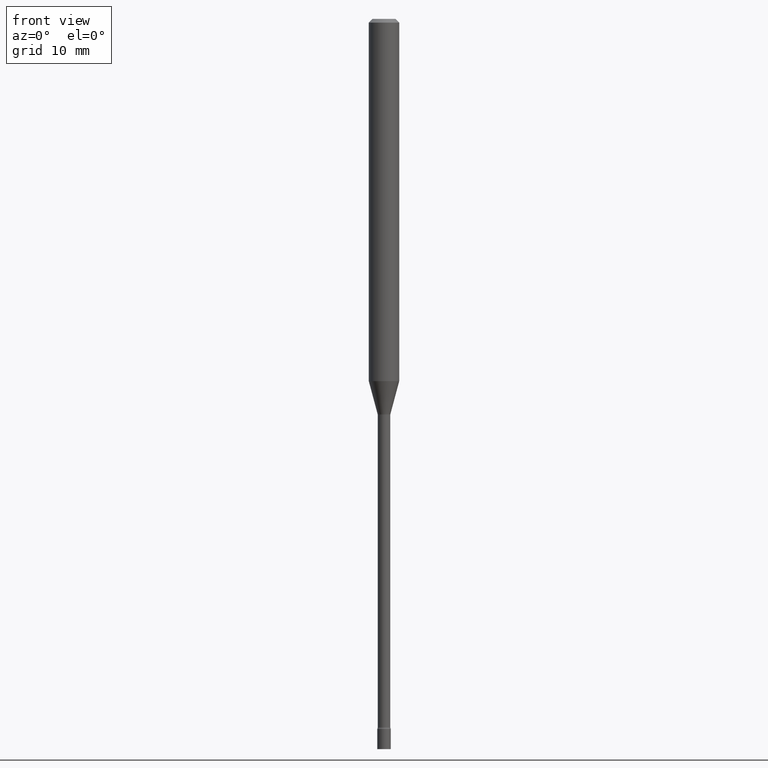
[diagram: clean part render]
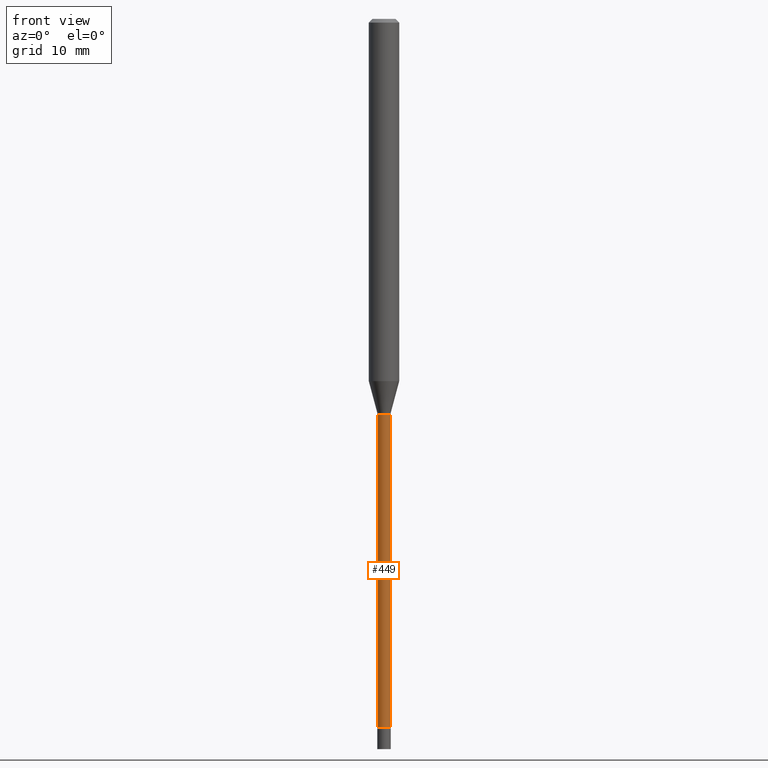
[diagram: same view with one face highlighted and labeled with its STEP entity id]
A machine part, front view. The second image highlights one B-rep face of the part: STEP entity #449.
In plain terms, the highlighted cylindrical surface (edge-blend (fillet) strip) has radius 0.6566 mm, axis along (-0, 0, 1).
Its self-contained STEP definition (entity closure, byte-faithful):
#49 = FACE_OUTER_BOUND ( 'NONE', #282, .T. ) ;
#65 = VERTEX_POINT ( 'NONE', #433 ) ;
#77 = DIRECTION ( 'NONE',  ( 1.000000000000000000, -6.982962677686291954E-15, 0.000000000000000000 ) ) ;
#82 = VERTEX_POINT ( 'NONE', #154 ) ;
#85 = CIRCLE ( 'NONE', #173, 0.02585000000000014370 ) ;
#137 = CARTESIAN_POINT ( 'NONE',  ( 0.02585000000000007084, -1.805095852181904948E-16, 1.260491696543252796E-30 ) ) ;
#154 = CARTESIAN_POINT ( 'NONE',  ( -0.02585000000000014370, -9.983173958169585675E-15, -2.910160592130893065 ) ) ;
#173 = AXIS2_PLACEMENT_3D ( 'NONE', #318, #441, #77 ) ;
#176 = LINE ( 'NONE', #254, #251 ) ;
#190 = CARTESIAN_POINT ( 'NONE',  ( 0.02585000000000014370, -1.034128098567992287E-14, -2.910160592130893065 ) ) ;
#195 = VERTEX_POINT ( 'NONE', #190 ) ;
#204 = CARTESIAN_POINT ( 'NONE',  ( 3.978716091192442903E-29, -5.680552109198189937E-15, -1.626974787463811412 ) ) ;
#220 = ORIENTED_EDGE ( 'NONE', *, *, #419, .F. ) ;
#222 = CIRCLE ( 'NONE', #510, 0.02584999999999999798 ) ;
#247 = ORIENTED_EDGE ( 'NONE', *, *, #461, .T. ) ;
#251 = VECTOR ( 'NONE', #260, 39.37007874015748143 ) ;
#254 = CARTESIAN_POINT ( 'NONE',  ( -0.02585000000000007084, 1.836752971939864014E-16, -1.271544720830896737E-30 ) ) ;
#260 = DIRECTION ( 'NONE',  ( -2.445468806185136877E-29, 3.491481338843145188E-15, 1.000000000000000000 ) ) ;
#282 = EDGE_LOOP ( 'NONE', ( #220, #512, #247, #442 ) ) ;
#286 = VERTEX_POINT ( 'NONE', #287 ) ;
#287 = CARTESIAN_POINT ( 'NONE',  ( 0.02584999999999999798, -5.861061694416379716E-15, -1.626974787463811412 ) ) ;
#318 = CARTESIAN_POINT ( 'NONE',  ( 7.116706949045365287E-29, -1.016077140046173230E-14, -2.910160592130893065 ) ) ;
#323 = AXIS2_PLACEMENT_3D ( 'NONE', #371, #415, #486 ) ;
#337 = DIRECTION ( 'NONE',  ( -2.445468806185136877E-29, 3.491481338843145188E-15, 1.000000000000000000 ) ) ;
#362 = DIRECTION ( 'NONE',  ( -2.445468806185136597E-29, 3.491481338843145583E-15, 1.000000000000000000 ) ) ;
#371 = CARTESIAN_POINT ( 'NONE',  ( 0.000000000000000000, 0.000000000000000000, 0.000000000000000000 ) ) ;
#373 = EDGE_CURVE ( 'NONE', #82, #195, #85, .T. ) ;
#377 = CYLINDRICAL_SURFACE ( 'NONE', #323, 0.02585000000000007084 ) ;
#400 = EDGE_CURVE ( 'NONE', #65, #286, #222, .T. ) ;
#415 = DIRECTION ( 'NONE',  ( -2.445468806185136597E-29, 3.491481338843145583E-15, 1.000000000000000000 ) ) ;
#419 = EDGE_CURVE ( 'NONE', #82, #65, #176, .T. ) ;
#433 = CARTESIAN_POINT ( 'NONE',  ( -0.02584999999999999798, -7.736986457635971782E-15, -1.626974787463811412 ) ) ;
#441 = DIRECTION ( 'NONE',  ( -2.445468806185136597E-29, 3.491481338843145583E-15, 1.000000000000000000 ) ) ;
#442 = ORIENTED_EDGE ( 'NONE', *, *, #400, .F. ) ;
#448 = DIRECTION ( 'NONE',  ( 1.000000000000000000, -6.982962677686256455E-15, 0.000000000000000000 ) ) ;
#449 = ADVANCED_FACE ( 'NONE', ( #49 ), #377, .T. ) ;
#461 = EDGE_CURVE ( 'NONE', #195, #286, #491, .T. ) ;
#480 = VECTOR ( 'NONE', #337, 39.37007874015748143 ) ;
#486 = DIRECTION ( 'NONE',  ( 1.000000000000000000, -6.982962677686266711E-15, 4.876176775795935793E-29 ) ) ;
#491 = LINE ( 'NONE', #137, #480 ) ;
#510 = AXIS2_PLACEMENT_3D ( 'NONE', #204, #362, #448 ) ;
#512 = ORIENTED_EDGE ( 'NONE', *, *, #373, .T. ) ;